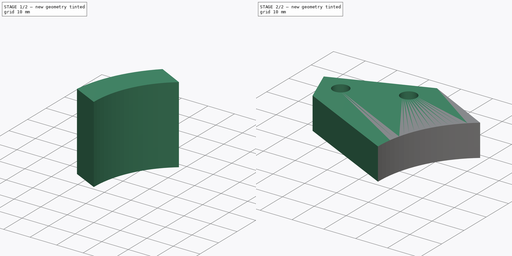
[diagram: build sequence overview — one tinted view per stage of 2, left to right]
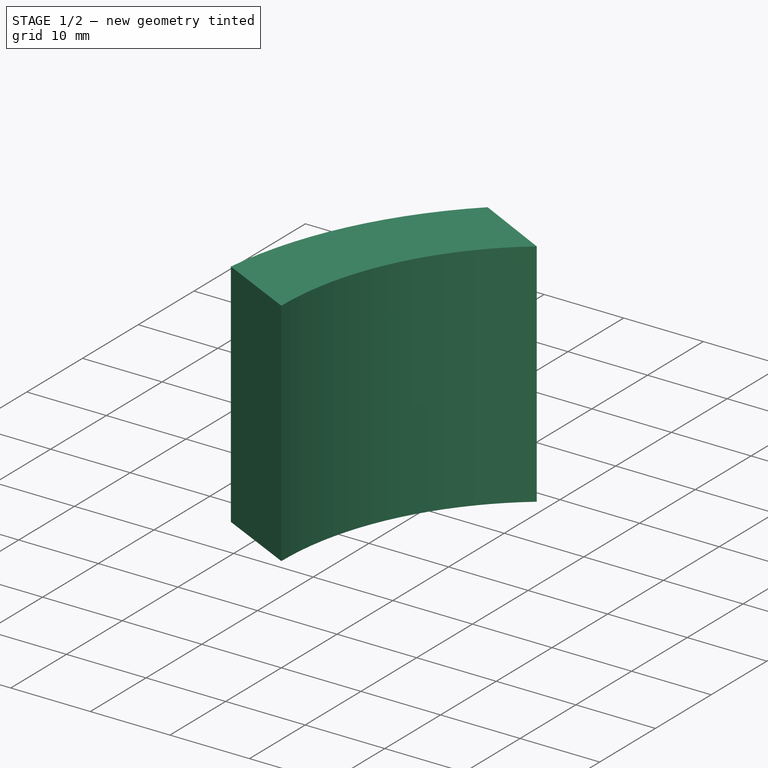
[diagram: stage 1 of 2 — iso view after this stage's code; geometry added in this stage tinted green]
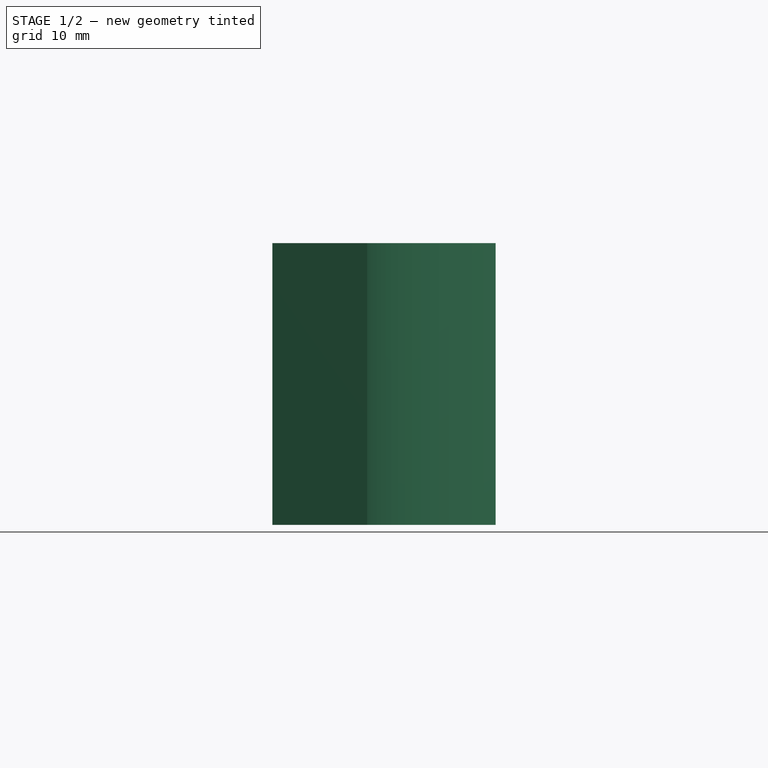
[diagram: stage 1 of 2 — front view after this stage's code; geometry added in this stage tinted green]
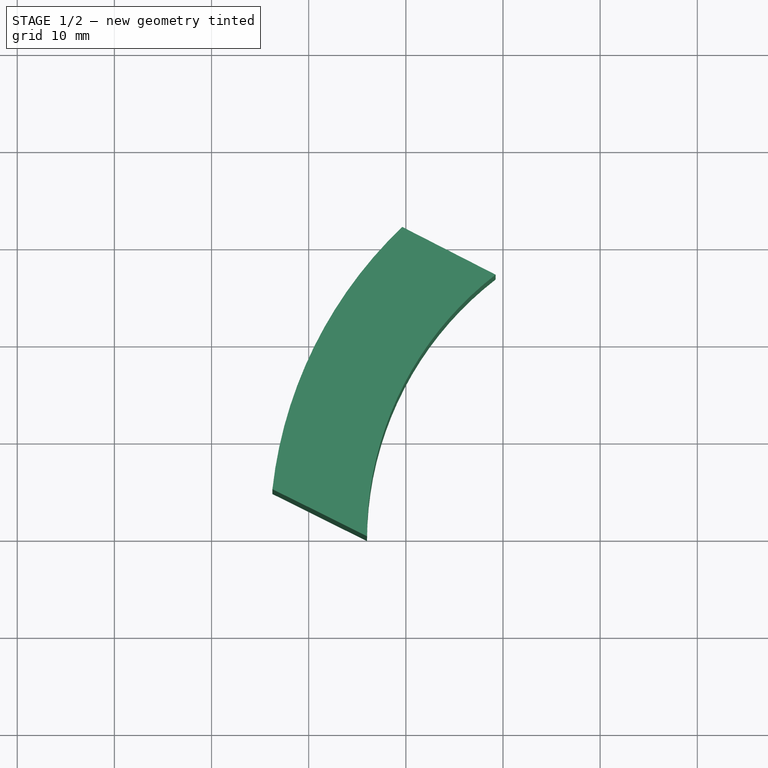
[diagram: stage 1 of 2 — top view after this stage's code; geometry added in this stage tinted green]
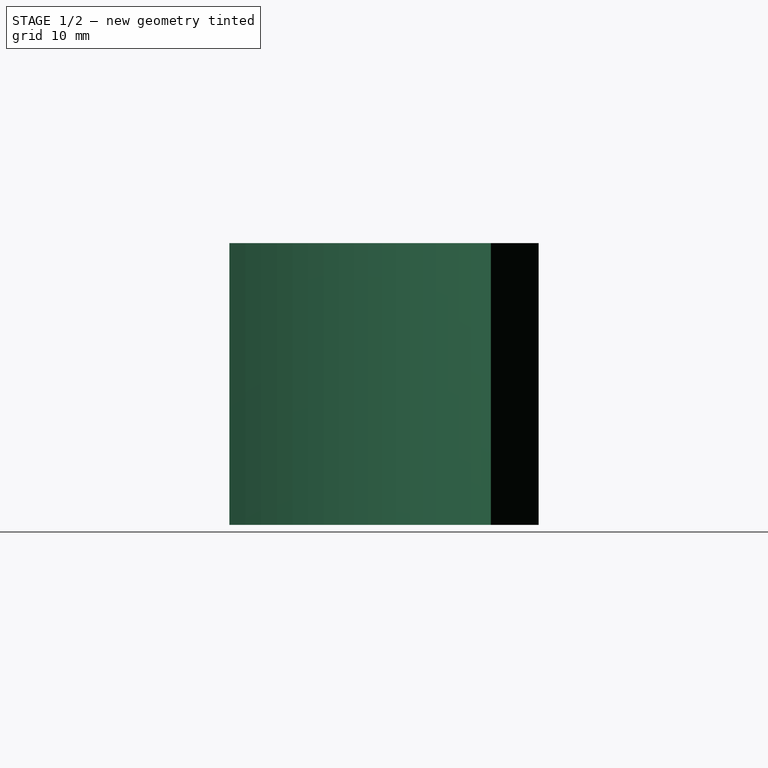
[diagram: stage 1 of 2 — right view after this stage's code; geometry added in this stage tinted green]
FCSTD DOCUMENT  (FreeCAD 0.19R21329 (Git))
Label: ElectricLongboard_MotorMount_2b
License: All rights reserved
LicenseURL: http://en.wikipedia.org/wiki/All_rights_reserved
objects: Sketcher::SketchObject×3, Part::Extrusion×3, Spreadsheet::Sheet×1
note: 6 computed .brp shape members not serialized (recipe doc carries the construction recipe); baked Part::Feature solids carry a one-line shape summary decoded from their .brp

FEATURE [Sketcher::SketchObject] Sketch  label="Sketch_Base"
  expr: Constraints[1] = <<vars>>.outer_diam
  sketch-geometry (2):
    g0: Circle CenterX=0 CenterY=0 CenterZ=0 NormalX=0 NormalY=0 NormalZ=1 AngleXU=0 Radius=34
    g1: Circle CenterX=0 CenterY=0 CenterZ=0 NormalX=0 NormalY=0 NormalZ=1 AngleXU=0 Radius=15
  constraints (4):
    c: Coincident(g0,g-1)
    c: Diameter(g0) = 68
    c: Coincident(g1,g0)
    c: Diameter(g1) = 30
FEATURE [Part::Extrusion] Extrude
  Base = -> Sketch
  Dir = (0,0,1)
  DirMode = 2
  FaceMakerClass = Part::FaceMakerBullseye
  LengthFwd = 10
  LengthRev = 0
  Solid = true
  Symmetric = false
FEATURE [Sketcher::SketchObject] Sketch001  label="Sketch_Side"
  ExternalGeometry = -> [Extrude]
  MapMode = 5
  Placement = pos=(0,0,10) rot=(0,0,1;0rad)
  Support = -> [Extrude]
  expr: Constraints[4] = <<vars>>.outer_diam + 20
  expr: Constraints[1] = <<vars>>.outer_diam
  sketch-geometry (4):
    g0: ArcOfCircle CenterX=0 CenterY=0 CenterZ=0 NormalX=0 NormalY=0 NormalZ=1 AngleXU=0 Radius=34 StartAngle=2.22777 EndAngle=3.14159
    g1: ArcOfCircle CenterX=0 CenterY=0 CenterZ=0 NormalX=0 NormalY=0 NormalZ=1 AngleXU=0 Radius=44 StartAngle=2.33261 EndAngle=3.03135
    g2: LineSegment StartX=-30.3704 StartY=31.8377 StartZ=0 EndX=-20.7647 EndY=26.9226 EndZ=0
    g3: LineSegment StartX=-43.7329 StartY=4.84064 StartZ=0 EndX=-34 EndY=0 EndZ=0
  constraints (10):
    c: Coincident(g0,g-1)
    c: Diameter(g0) = 68
    c: PointOnObject(g0,g-1)
    c: Coincident(g1,g0)
    c: Diameter(g1) = 88
    c: Distance(g0,g0) = 30
    c: Coincident(g2,g0)
    c: Coincident(g2,g1)
    c: Coincident(g3,g1)
    c: Coincident(g3,g0)
FEATURE [Spreadsheet::Sheet] Spreadsheet  label="vars"
  cells = A1=Outer Diametre; B1(outer_diam)=68
FEATURE [Part::Extrusion] Extrude001
  Base = -> Sketch001
  Dir = (0,0,1)
  DirMode = 2
  FaceMakerClass = Part::FaceMakerBullseye
  LengthFwd = 19
  LengthRev = 10
  Solid = true
  Symmetric = false
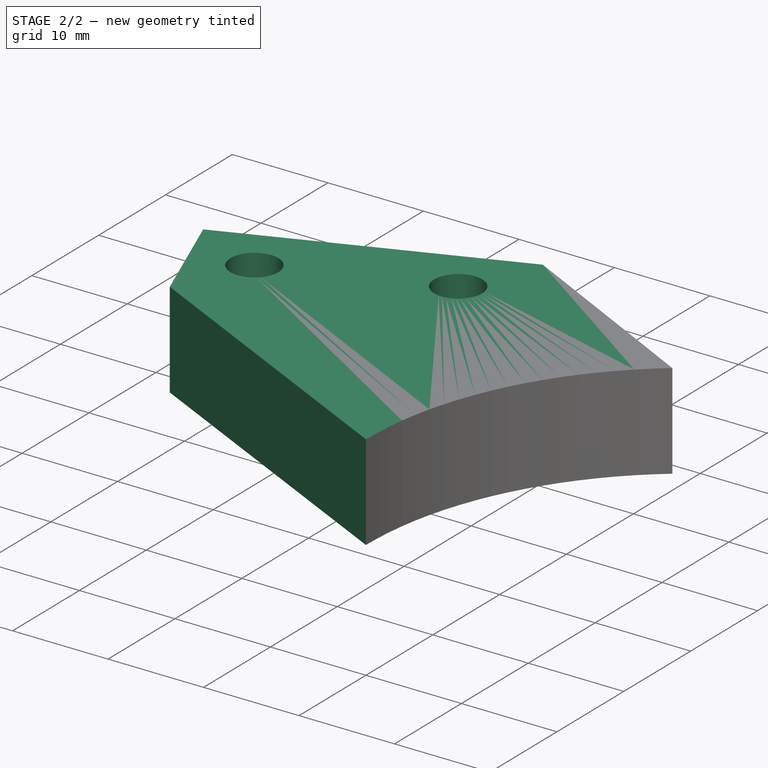
[diagram: stage 2 of 2 — iso view after this stage's code; geometry added in this stage tinted green]
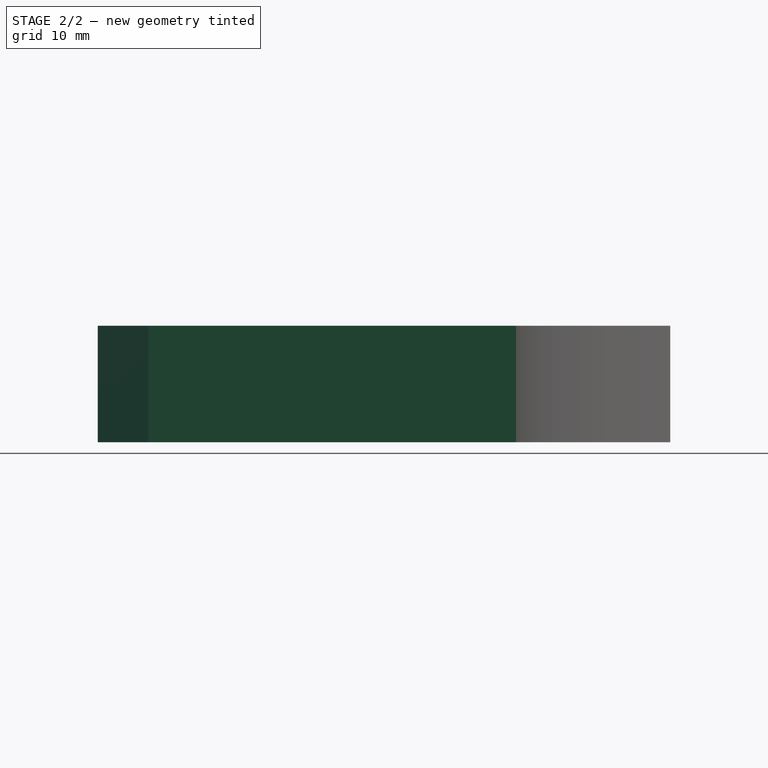
[diagram: stage 2 of 2 — front view after this stage's code; geometry added in this stage tinted green]
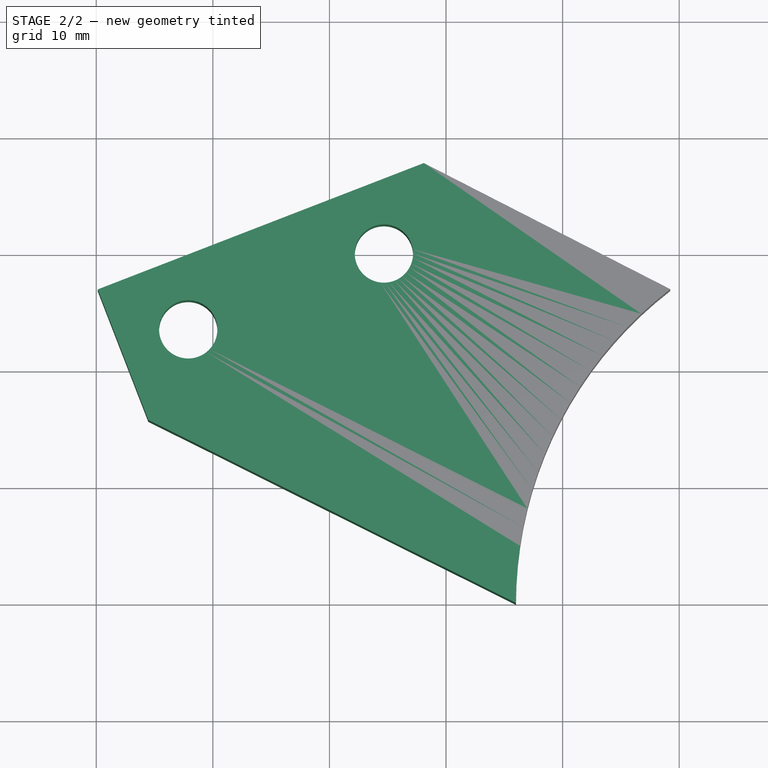
[diagram: stage 2 of 2 — top view after this stage's code; geometry added in this stage tinted green]
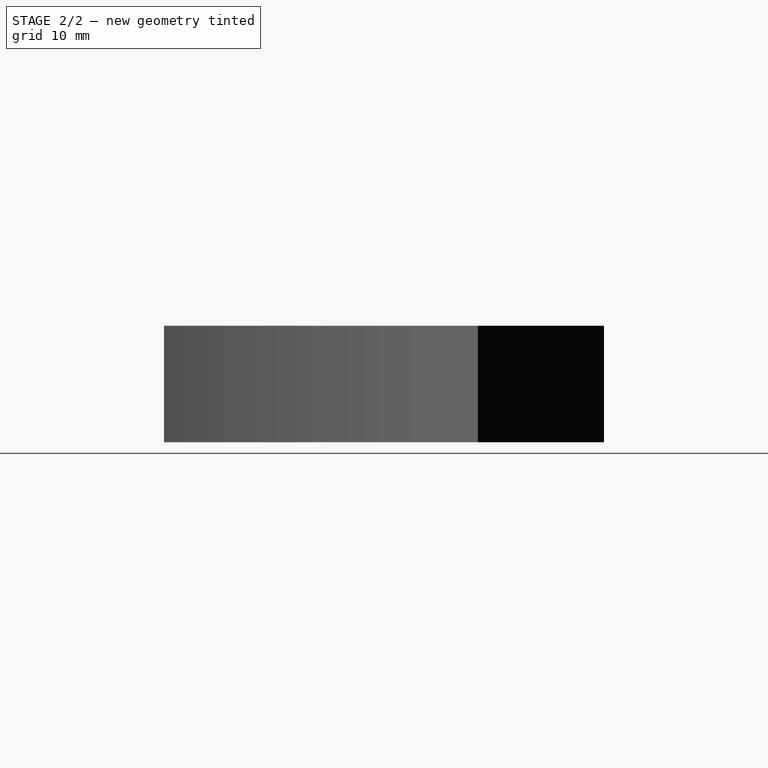
[diagram: stage 2 of 2 — right view after this stage's code; geometry added in this stage tinted green]
FEATURE [Sketcher::SketchObject] Sketch002  label="Sketch_Attachment"
  ExternalGeometry = -> [Extrude001]
  MapMode = 5
  Placement = pos=(0,0,0) rot=(1,0,0;3.14159rad)
  Support = -> [Extrude001]
  expr: Constraints[19] = <<vars>>.outer_diam
  expr: Constraints[11] = <<vars>>.outer_diam / 2 + 12
  sketch-geometry (10):
    g0: LineSegment [constr] StartX=-65.5389 StartY=-15.7092 StartZ=0 EndX=-37.5656 EndY=-26.5486 EndZ=0
    g1: LineSegment [constr] StartX=-37.5656 StartY=-26.5486 StartZ=0 EndX=-41.9013 EndY=-37.7379 EndZ=0
    g2: LineSegment StartX=-41.9013 StartY=-37.7379 StartZ=0 EndX=-69.8747 EndY=-26.8986 EndZ=0
    g3: LineSegment StartX=-69.8747 StartY=-26.8986 StartZ=0 EndX=-65.5389 EndY=-15.7092 EndZ=0
    g4: GeomPoint X=-53.7201 Y=-26.7236 Z=0
    g5: LineSegment StartX=-41.9013 StartY=-37.7379 StartZ=0 EndX=-20.7647 EndY=-26.9226 EndZ=0
    g6: LineSegment StartX=-65.5389 StartY=-15.7092 StartZ=0 EndX=-34 EndY=-1.8e-15 EndZ=0
    g7: ArcOfCircle CenterX=-1.5e-15 CenterY=-6.7e-15 CenterZ=0 NormalX=0 NormalY=0 NormalZ=1 AngleXU=0 Radius=34 StartAngle=3.14159 EndAngle=4.05541
    g8: Circle CenterX=-62.1121 CenterY=-23.4718 CenterZ=0 NormalX=0 NormalY=0 NormalZ=1 AngleXU=0 Radius=2.5
    g9: Circle CenterX=-45.3281 CenterY=-29.9754 CenterZ=0 NormalX=0 NormalY=0 NormalZ=1 AngleXU=0 Radius=2.5
  constraints (26):
    c: Coincident(g0,g1)
    c: Coincident(g1,g2)
    c: Coincident(g2,g3)
    c: Coincident(g3,g0)
    c: Equal(g0,g2)
    c: Equal(g1,g3)
    c: Angle(g0,g1) = 1.5708
    c: Distance(g0) = 30
    c: Distance(g3) = 12
    c: Symmetric(g2,g0,g4)
    c: Distance(g-1,g4) = 60
    c: Distance(g-1,g0) = 46
    c: Coincident(g5,g1)
    c: Coincident(g6,g0)
    c: Coincident(g7,g6)
    c: Coincident(g6,g-3)
    c: Coincident(g7,g5)
    c: Coincident(g5,g-3)
    c: Diameter(g-3) = 68
    c: Diameter(g7) = 68
    c: Distance(g8,g0) = 6
    c: PointOnObject(g-4,g5)
    c: Distance(g8,g3) = 6
    c: Symmetric(g8,g9,g4)
    c: Diameter(g8) = 5
    c: Equal(g8,g9)
FEATURE [Part::Extrusion] Extrude002
  Base = -> Sketch002
  Dir = (0,0,-1)
  DirMode = 2
  FaceMakerClass = Part::FaceMakerBullseye
  LengthFwd = 10
  LengthRev = 0
  Placement = pos=(0,0,29) rot=(0,0,1;0rad)
  Solid = true
  Symmetric = false
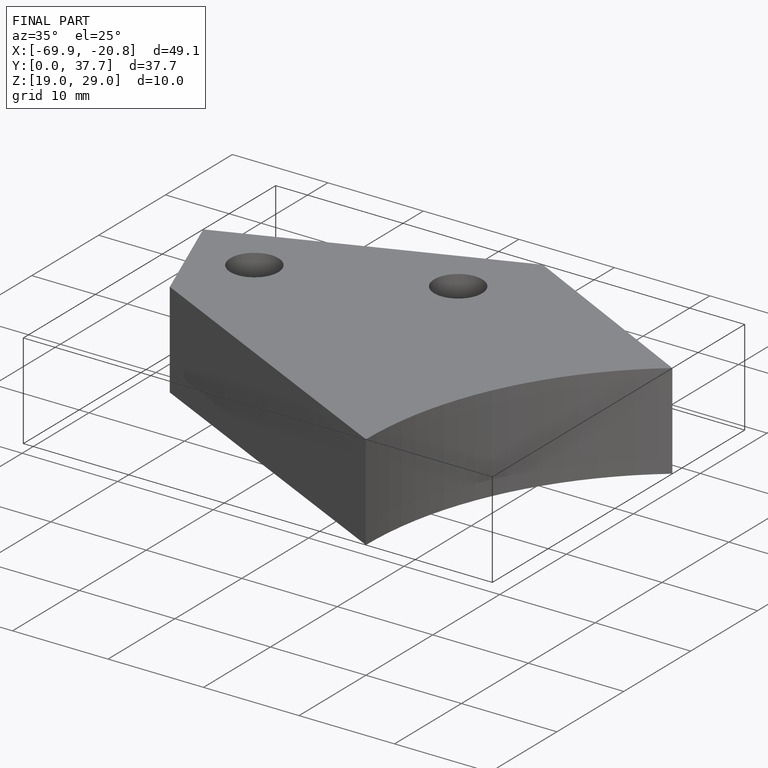
[diagram: finished part — iso view with bounding-box wireframe]
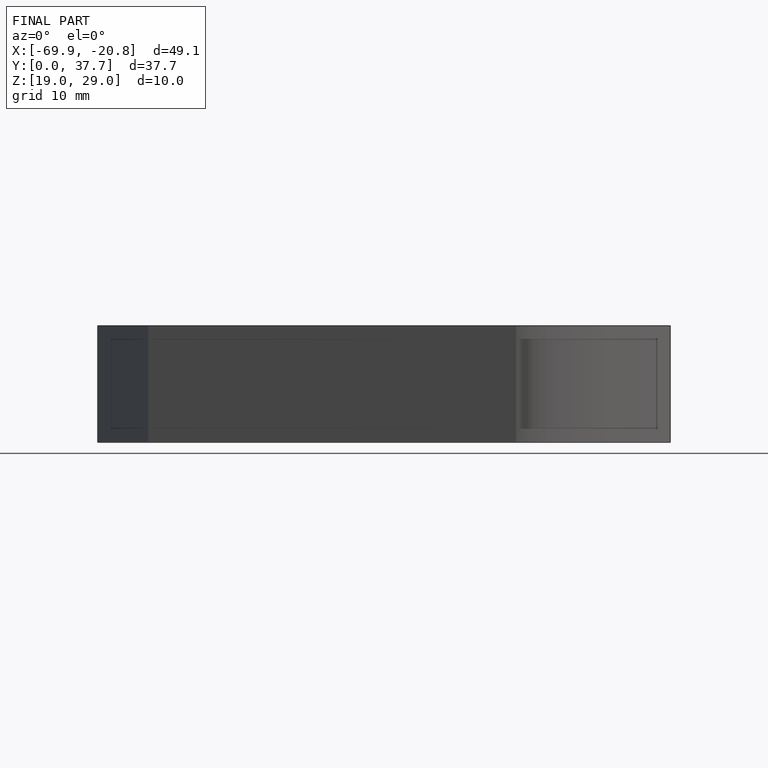
[diagram: finished part — front view with bounding-box wireframe]
